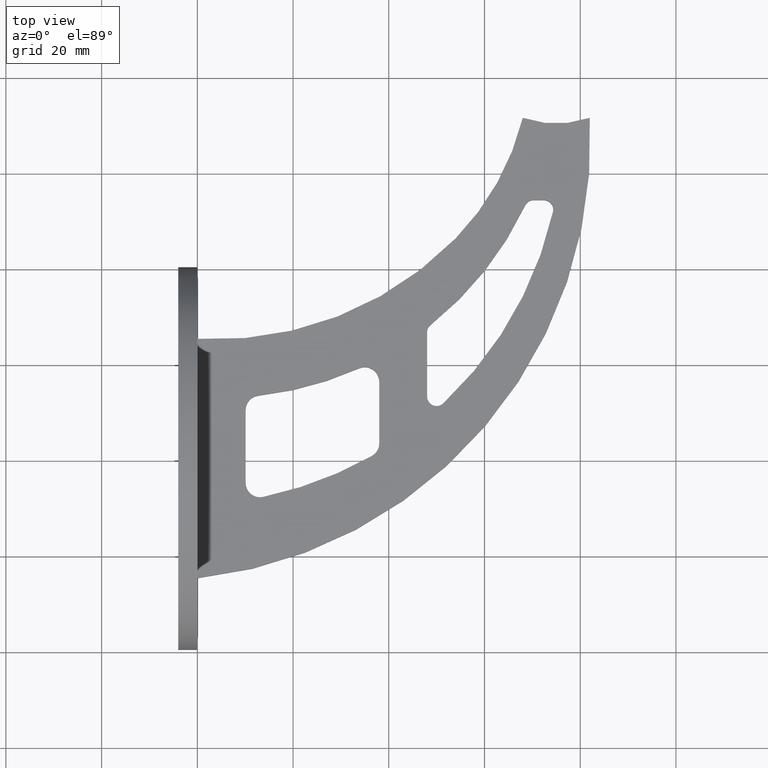
[diagram: clean part render]
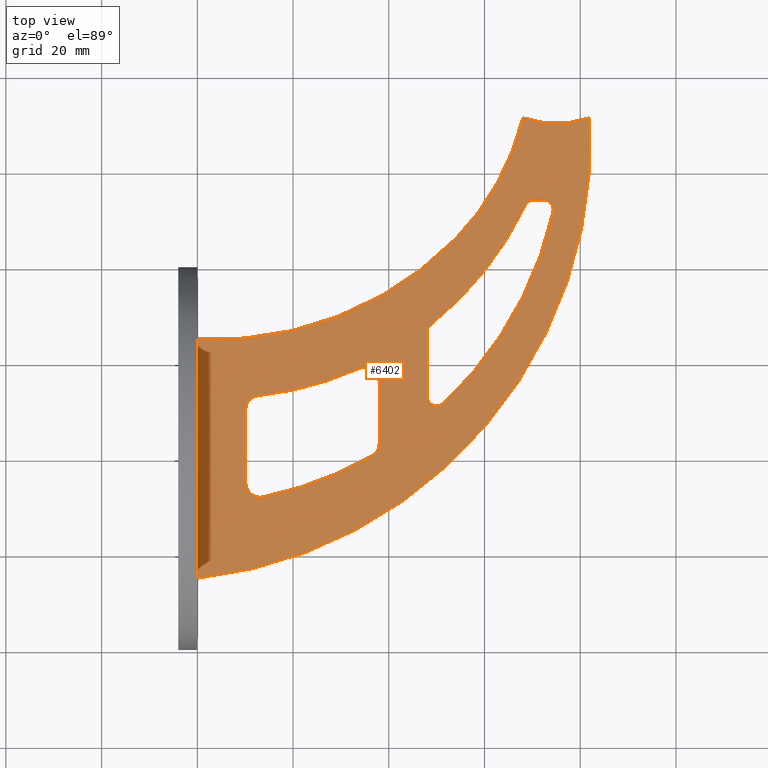
[diagram: same view with one face highlighted and labeled with its STEP entity id]
A machine part, top view. The second image highlights one B-rep face of the part: STEP entity #6402.
In plain terms, the highlighted planar face has unit normal (-0, 0, 1).
Its self-contained STEP definition (entity closure, byte-faithful):
#46 = CIRCLE ( 'NONE', #1055, 55.00000000000000711 ) ;
#64 = VERTEX_POINT ( 'NONE', #10560 ) ;
#187 = CIRCLE ( 'NONE', #260, 21.19999999999999574 ) ;
#226 = VERTEX_POINT ( 'NONE', #10006 ) ;
#260 = AXIS2_PLACEMENT_3D ( 'NONE', #10851, #5591, #3865 ) ;
#297 = VERTEX_POINT ( 'NONE', #5389 ) ;
#304 = ORIENTED_EDGE ( 'NONE', *, *, #4986, .T. ) ;
#333 = EDGE_CURVE ( 'NONE', #4907, #64, #11321, .T. ) ;
#575 = ORIENTED_EDGE ( 'NONE', *, *, #12045, .F. ) ;
#577 = AXIS2_PLACEMENT_3D ( 'NONE', #12306, #7294, #1469 ) ;
#614 = AXIS2_PLACEMENT_3D ( 'NONE', #7865, #8837, #3047 ) ;
#697 = ORIENTED_EDGE ( 'NONE', *, *, #1797, .T. ) ;
#766 = DIRECTION ( 'NONE',  ( 1.000000000000000000, 0.000000000000000000, 0.000000000000000000 ) ) ;
#813 = ORIENTED_EDGE ( 'NONE', *, *, #10724, .F. ) ;
#1036 = VERTEX_POINT ( 'NONE', #7690 ) ;
#1055 = AXIS2_PLACEMENT_3D ( 'NONE', #1887, #10678, #7758 ) ;
#1064 = CIRCLE ( 'NONE', #5026, 3.000000000000000888 ) ;
#1099 = DIRECTION ( 'NONE',  ( 0.000000000000000000, -0.000000000000000000, -1.000000000000000000 ) ) ;
#1165 = DIRECTION ( 'NONE',  ( 3.552713678800588651E-14, 1.000000000000000000, 0.000000000000000000 ) ) ;
#1204 = ORIENTED_EDGE ( 'NONE', *, *, #333, .F. ) ;
#1243 = DIRECTION ( 'NONE',  ( 0.000000000000000000, -0.000000000000000000, -1.000000000000000000 ) ) ;
#1244 = ORIENTED_EDGE ( 'NONE', *, *, #9173, .T. ) ;
#1318 = DIRECTION ( 'NONE',  ( 1.000000000000000000, 0.000000000000000000, 0.000000000000000000 ) ) ;
#1431 = CARTESIAN_POINT ( 'NONE',  ( -1.998139615876600116E-12, -24.99999999999961986, 2.000000000000000000 ) ) ;
#1458 = EDGE_CURVE ( 'NONE', #4428, #226, #7194, .T. ) ;
#1469 = DIRECTION ( 'NONE',  ( 1.000000000000000000, 0.000000000000000000, 0.000000000000000000 ) ) ;
#1481 = EDGE_CURVE ( 'NONE', #10685, #12131, #187, .T. ) ;
#1524 = DIRECTION ( 'NONE',  ( 1.000000000000000000, 0.000000000000000000, 0.000000000000000000 ) ) ;
#1578 = DIRECTION ( 'NONE',  ( 0.000000000000000000, -0.000000000000000000, -1.000000000000000000 ) ) ;
#1586 = EDGE_CURVE ( 'NONE', #4907, #7285, #7035, .T. ) ;
#1657 = DIRECTION ( 'NONE',  ( 1.000000000000000000, 0.000000000000000000, 0.000000000000000000 ) ) ;
#1712 = CIRCLE ( 'NONE', #7121, 69.99999999999998579 ) ;
#1715 = DIRECTION ( 'NONE',  ( 0.000000000000000000, 1.000000000000000000, -0.000000000000000000 ) ) ;
#1797 = EDGE_CURVE ( 'NONE', #7285, #4428, #1712, .T. ) ;
#1814 = EDGE_CURVE ( 'NONE', #6371, #64, #12047, .T. ) ;
#1877 = ORIENTED_EDGE ( 'NONE', *, *, #10908, .F. ) ;
#1887 = CARTESIAN_POINT ( 'NONE',  ( 14.61404249810564338, 84.41547426875771976, 2.000000000000000000 ) ) ;
#1903 = CIRCLE ( 'NONE', #577, 69.99999999999997158 ) ;
#2049 = VECTOR ( 'NONE', #6652, 1000.000000000000000 ) ;
#2293 = CARTESIAN_POINT ( 'NONE',  ( 5.180452133363093736, 82.72691493104838401, 2.000000000000000000 ) ) ;
#2468 = CARTESIAN_POINT ( 'NONE',  ( 33.77453912876527653, 18.83342395661993862, 2.000000000000000000 ) ) ;
#2518 = DIRECTION ( 'NONE',  ( -0.000000000000000000, 0.000000000000000000, 1.000000000000000000 ) ) ;
#2579 = DIRECTION ( 'NONE',  ( 1.000000000000000000, 0.000000000000000000, 0.000000000000000000 ) ) ;
#2593 = PLANE ( 'NONE',  #8277 ) ;
#2871 = EDGE_CURVE ( 'NONE', #297, #6507, #8697, .T. ) ;
#2996 = AXIS2_PLACEMENT_3D ( 'NONE', #10279, #3552, #1657 ) ;
#3014 = CARTESIAN_POINT ( 'NONE',  ( 49.99999999999681677, 26.37792976689011581, 2.000000000000000000 ) ) ;
#3047 = DIRECTION ( 'NONE',  ( 1.000000000000000000, 0.000000000000000000, 0.000000000000000000 ) ) ;
#3088 = EDGE_CURVE ( 'NONE', #6371, #9412, #7323, .T. ) ;
#3094 = DIRECTION ( 'NONE',  ( 1.000000000000000000, 3.469446951953611033E-15, 0.000000000000000000 ) ) ;
#3170 = ORIENTED_EDGE ( 'NONE', *, *, #1481, .F. ) ;
#3173 = CARTESIAN_POINT ( 'NONE',  ( 1.998587412948803633E-12, 24.99999999999992539, 2.000000000000000000 ) ) ;
#3262 = CARTESIAN_POINT ( 'NONE',  ( 5.180452133363093736, 82.72691493104838401, 2.000000000000000000 ) ) ;
#3330 = AXIS2_PLACEMENT_3D ( 'NONE', #5448, #2518, #1524 ) ;
#3499 = DIRECTION ( 'NONE',  ( 0.000000000000000000, -0.000000000000000000, -1.000000000000000000 ) ) ;
#3544 = ORIENTED_EDGE ( 'NONE', *, *, #1586, .T. ) ;
#3552 = DIRECTION ( 'NONE',  ( -0.000000000000000000, 0.000000000000000000, 1.000000000000000000 ) ) ;
#3643 = FACE_BOUND ( 'NONE', #5738, .T. ) ;
#3797 = FACE_BOUND ( 'NONE', #8676, .T. ) ;
#3798 = DIRECTION ( 'NONE',  ( 0.000000000000000000, -0.000000000000000000, -1.000000000000000000 ) ) ;
#3846 = AXIS2_PLACEMENT_3D ( 'NONE', #2293, #6066, #10937 ) ;
#3865 = DIRECTION ( 'NONE',  ( 1.000000000000000000, 0.000000000000000000, 0.000000000000000000 ) ) ;
#3887 = AXIS2_PLACEMENT_3D ( 'NONE', #3014, #1243, #3094 ) ;
#4009 = EDGE_CURVE ( 'NONE', #8315, #12131, #7476, .T. ) ;
#4219 = ORIENTED_EDGE ( 'NONE', *, *, #11733, .T. ) ;
#4428 = VERTEX_POINT ( 'NONE', #7551 ) ;
#4504 = ORIENTED_EDGE ( 'NONE', *, *, #1458, .T. ) ;
#4538 = CIRCLE ( 'NONE', #7066, 3.000000000000002665 ) ;
#4569 = CARTESIAN_POINT ( 'NONE',  ( 70.29463414327638304, 52.00000000000000711, 2.000000000000000000 ) ) ;
#4643 = ORIENTED_EDGE ( 'NONE', *, *, #4009, .T. ) ;
#4820 = DIRECTION ( 'NONE',  ( 1.000000000000000000, 0.000000000000000000, 0.000000000000000000 ) ) ;
#4907 = VERTEX_POINT ( 'NONE', #10160 ) ;
#4937 = AXIS2_PLACEMENT_3D ( 'NONE', #7457, #12158, #10194 ) ;
#4986 = EDGE_CURVE ( 'NONE', #297, #11035, #1064, .T. ) ;
#5026 = AXIS2_PLACEMENT_3D ( 'NONE', #6847, #12638, #4820 ) ;
#5048 = ORIENTED_EDGE ( 'NONE', *, *, #2871, .F. ) ;
#5103 = VECTOR ( 'NONE', #1715, 1000.000000000000000 ) ;
#5117 = LINE ( 'NONE', #10066, #7078 ) ;
#5292 = DIRECTION ( 'NONE',  ( -0.000000000000000000, 0.000000000000000000, 1.000000000000000000 ) ) ;
#5374 = ORIENTED_EDGE ( 'NONE', *, *, #10644, .T. ) ;
#5389 = CARTESIAN_POINT ( 'NONE',  ( 13.71090013864576207, -8.036652366193566266, 2.000000000000000000 ) ) ;
#5397 = VERTEX_POINT ( 'NONE', #8783 ) ;
#5448 = CARTESIAN_POINT ( 'NONE',  ( -9.878794471127335441, 66.46807869304582539, 2.000000000000000000 ) ) ;
#5571 = VERTEX_POINT ( 'NONE', #3173 ) ;
#5591 = DIRECTION ( 'NONE',  ( -0.000000000000000000, 0.000000000000000000, 1.000000000000000000 ) ) ;
#5610 = FACE_OUTER_BOUND ( 'NONE', #10733, .T. ) ;
#5639 = CARTESIAN_POINT ( 'NONE',  ( 37.99999999999681677, 16.09513148628725787, 2.000000000000001776 ) ) ;
#5738 = EDGE_LOOP ( 'NONE', ( #575, #1244, #5048, #304, #8937, #5374, #4219, #8889 ) ) ;
#5761 = ORIENTED_EDGE ( 'NONE', *, *, #12019, .F. ) ;
#5771 = DIRECTION ( 'NONE',  ( 3.565691630451076648E-16, 1.000000000000000000, 0.000000000000000000 ) ) ;
#5849 = CARTESIAN_POINT ( 'NONE',  ( 1.110223024625135740E-12, -3.944304526105082560E-26, 2.000000000000000000 ) ) ;
#6017 = LINE ( 'NONE', #8647, #5103 ) ;
#6066 = DIRECTION ( 'NONE',  ( -0.000000000000000000, 0.000000000000000000, 1.000000000000000000 ) ) ;
#6267 = DIRECTION ( 'NONE',  ( 1.000000000000000000, 0.000000000000000000, 0.000000000000000000 ) ) ;
#6366 = DIRECTION ( 'NONE',  ( 1.000000000000000000, 0.000000000000000000, 0.000000000000000000 ) ) ;
#6371 = VERTEX_POINT ( 'NONE', #9199 ) ;
#6402 = ADVANCED_FACE ( 'NONE', ( #3643, #3797, #5610 ), #2593, .T. ) ;
#6495 = DIRECTION ( 'NONE',  ( -0.000000000000000000, 0.000000000000000000, 1.000000000000000000 ) ) ;
#6507 = VERTEX_POINT ( 'NONE', #9368 ) ;
#6599 = VERTEX_POINT ( 'NONE', #5639 ) ;
#6652 = DIRECTION ( 'NONE',  ( 0.000000000000000000, -1.000000000000000000, 0.000000000000000000 ) ) ;
#6847 = CARTESIAN_POINT ( 'NONE',  ( 13.10000000000000142, -5.099510724971153763, 2.000000000000000000 ) ) ;
#7035 = CIRCLE ( 'NONE', #3887, 2.000000000000001776 ) ;
#7066 = AXIS2_PLACEMENT_3D ( 'NONE', #11688, #1099, #10783 ) ;
#7078 = VECTOR ( 'NONE', #1318, 1000.000000000000000 ) ;
#7082 = DIRECTION ( 'NONE',  ( 0.000000000000000000, -0.000000000000000000, -1.000000000000000000 ) ) ;
#7110 = CARTESIAN_POINT ( 'NONE',  ( 81.99999999999997158, 71.18900302333739205, 2.000000000000000000 ) ) ;
#7121 = AXIS2_PLACEMENT_3D ( 'NONE', #3262, #5292, #6267 ) ;
#7194 = CIRCLE ( 'NONE', #9559, 2.000000000000001776 ) ;
#7215 = EDGE_CURVE ( 'NONE', #8361, #6599, #4538, .T. ) ;
#7285 = VERTEX_POINT ( 'NONE', #11034 ) ;
#7294 = DIRECTION ( 'NONE',  ( -0.000000000000000000, 0.000000000000000000, 1.000000000000000000 ) ) ;
#7323 = CIRCLE ( 'NONE', #2996, 78.50000000000000000 ) ;
#7457 = CARTESIAN_POINT ( 'NONE',  ( 49.99999999999681677, 12.96476753913530722, 2.000000000000000000 ) ) ;
#7475 = ORIENTED_EDGE ( 'NONE', *, *, #9041, .T. ) ;
#7476 = CIRCLE ( 'NONE', #3330, 91.99999999999938893 ) ;
#7551 = CARTESIAN_POINT ( 'NONE',  ( 68.48590686522324233, 52.85352541475134558, 2.000000000000000000 ) ) ;
#7690 = CARTESIAN_POINT ( 'NONE',  ( 72.35400050248671278, 54.00000000000000711, 2.000000000000000000 ) ) ;
#7758 = DIRECTION ( 'NONE',  ( 1.000000000000000000, 0.000000000000000000, 0.000000000000000000 ) ) ;
#7865 = CARTESIAN_POINT ( 'NONE',  ( -2.274320155918185815, 68.81855391245915143, 2.000000000000000000 ) ) ;
#7978 = VECTOR ( 'NONE', #1165, 1000.000000000000000 ) ;
#8144 = EDGE_CURVE ( 'NONE', #1036, #9412, #12099, .T. ) ;
#8265 = CARTESIAN_POINT ( 'NONE',  ( 0.000000000000000000, 0.000000000000000000, 2.000000000000000000 ) ) ;
#8277 = AXIS2_PLACEMENT_3D ( 'NONE', #8265, #6495, #11242 ) ;
#8315 = VERTEX_POINT ( 'NONE', #1431 ) ;
#8361 = VERTEX_POINT ( 'NONE', #2468 ) ;
#8555 = CARTESIAN_POINT ( 'NONE',  ( 47.99999999999681677, 27.35105087009612745, 2.000000000000001776 ) ) ;
#8568 = CARTESIAN_POINT ( 'NONE',  ( 74.30506770924240811, 51.56029924411871690, 2.000000000000000000 ) ) ;
#8596 = CIRCLE ( 'NONE', #10655, 3.000000000000002665 ) ;
#8641 = ORIENTED_EDGE ( 'NONE', *, *, #3088, .F. ) ;
#8647 = CARTESIAN_POINT ( 'NONE',  ( 10.09999999999999964, 0.000000000000000000, 2.000000000000000000 ) ) ;
#8676 = EDGE_LOOP ( 'NONE', ( #8641, #10837, #1204, #3544, #697, #4504, #7475, #8890 ) ) ;
#8697 = CIRCLE ( 'NONE', #614, 78.50000000000000000 ) ;
#8783 = CARTESIAN_POINT ( 'NONE',  ( 37.99999999999680966, 3.161299500518132355, 2.000000000000001776 ) ) ;
#8810 = CARTESIAN_POINT ( 'NONE',  ( 37.99999999999680966, 1.437331483811726818, 2.000000000000001776 ) ) ;
#8837 = DIRECTION ( 'NONE',  ( -0.000000000000000000, 0.000000000000000000, 1.000000000000000000 ) ) ;
#8887 = CARTESIAN_POINT ( 'NONE',  ( 10.09999999999999964, -5.099510724971154652, 2.000000000000000000 ) ) ;
#8889 = ORIENTED_EDGE ( 'NONE', *, *, #7215, .T. ) ;
#8890 = ORIENTED_EDGE ( 'NONE', *, *, #8144, .T. ) ;
#8907 = CARTESIAN_POINT ( 'NONE',  ( 72.35400050248671278, 52.00000000000000711, 2.000000000000000000 ) ) ;
#8937 = ORIENTED_EDGE ( 'NONE', *, *, #9539, .T. ) ;
#9041 = EDGE_CURVE ( 'NONE', #226, #1036, #5117, .T. ) ;
#9173 = EDGE_CURVE ( 'NONE', #5397, #6507, #8596, .T. ) ;
#9181 = VERTEX_POINT ( 'NONE', #12537 ) ;
#9199 = CARTESIAN_POINT ( 'NONE',  ( 51.36664889296192626, 11.50453783002879149, 2.000000000000000000 ) ) ;
#9368 = CARTESIAN_POINT ( 'NONE',  ( 36.48109881413913058, 0.5524019742158270407, 2.000000000000000000 ) ) ;
#9412 = VERTEX_POINT ( 'NONE', #8568 ) ;
#9510 = CARTESIAN_POINT ( 'NONE',  ( 34.99999999999680256, 3.161299500518133243, 2.000000000000000000 ) ) ;
#9539 = EDGE_CURVE ( 'NONE', #11035, #9181, #6017, .T. ) ;
#9559 = AXIS2_PLACEMENT_3D ( 'NONE', #4569, #1578, #2579 ) ;
#9909 = AXIS2_PLACEMENT_3D ( 'NONE', #8907, #7082, #9927 ) ;
#9927 = DIRECTION ( 'NONE',  ( 1.000000000000000000, -3.469446951953611033E-15, 0.000000000000000000 ) ) ;
#10006 = CARTESIAN_POINT ( 'NONE',  ( 70.29463414327638304, 54.00000000000000711, 2.000000000000000000 ) ) ;
#10066 = CARTESIAN_POINT ( 'NONE',  ( 0.000000000000000000, 54.00000000000000711, 2.000000000000000000 ) ) ;
#10094 = LINE ( 'NONE', #8810, #11153 ) ;
#10160 = CARTESIAN_POINT ( 'NONE',  ( 47.99999999999681677, 26.37792976689011581, 2.000000000000001776 ) ) ;
#10194 = DIRECTION ( 'NONE',  ( 1.000000000000000000, 2.602085213965208275E-15, 0.000000000000000000 ) ) ;
#10253 = CARTESIAN_POINT ( 'NONE',  ( 68.00000000000000000, 71.18900302333739205, 2.000000000000000000 ) ) ;
#10279 = CARTESIAN_POINT ( 'NONE',  ( -2.274320155918185815, 68.81855391245915143, 2.000000000000000000 ) ) ;
#10390 = CIRCLE ( 'NONE', #3846, 69.99999999999998579 ) ;
#10560 = CARTESIAN_POINT ( 'NONE',  ( 47.99999999999681677, 12.96476753913530722, 2.000000000000001776 ) ) ;
#10583 = AXIS2_PLACEMENT_3D ( 'NONE', #12168, #3499, #6366 ) ;
#10644 = EDGE_CURVE ( 'NONE', #9181, #10682, #12236, .T. ) ;
#10655 = AXIS2_PLACEMENT_3D ( 'NONE', #9510, #3798, #766 ) ;
#10678 = DIRECTION ( 'NONE',  ( -0.000000000000000000, 0.000000000000000000, 1.000000000000000000 ) ) ;
#10682 = VERTEX_POINT ( 'NONE', #11280 ) ;
#10685 = VERTEX_POINT ( 'NONE', #10253 ) ;
#10724 = EDGE_CURVE ( 'NONE', #5571, #11236, #1903, .T. ) ;
#10733 = EDGE_LOOP ( 'NONE', ( #813, #1877, #4643, #3170, #5761 ) ) ;
#10783 = DIRECTION ( 'NONE',  ( 1.000000000000000000, 2.312964634635740689E-15, 0.000000000000000000 ) ) ;
#10837 = ORIENTED_EDGE ( 'NONE', *, *, #1814, .T. ) ;
#10851 = CARTESIAN_POINT ( 'NONE',  ( 74.99999999999998579, 91.20000000000000284, 2.000000000000000000 ) ) ;
#10908 = EDGE_CURVE ( 'NONE', #8315, #5571, #11636, .T. ) ;
#10937 = DIRECTION ( 'NONE',  ( 1.000000000000000000, 0.000000000000000000, 0.000000000000000000 ) ) ;
#11034 = CARTESIAN_POINT ( 'NONE',  ( 48.75501255925698274, 27.94317935478341042, 2.000000000000000000 ) ) ;
#11035 = VERTEX_POINT ( 'NONE', #8887 ) ;
#11153 = VECTOR ( 'NONE', #5771, 1000.000000000000000 ) ;
#11236 = VERTEX_POINT ( 'NONE', #12546 ) ;
#11242 = DIRECTION ( 'NONE',  ( 1.000000000000000000, 0.000000000000000000, 0.000000000000000000 ) ) ;
#11280 = CARTESIAN_POINT ( 'NONE',  ( 12.77453912876834252, 13.14006385481261674, 2.000000000000000000 ) ) ;
#11321 = LINE ( 'NONE', #8555, #2049 ) ;
#11636 = LINE ( 'NONE', #5849, #7978 ) ;
#11688 = CARTESIAN_POINT ( 'NONE',  ( 34.99999999999680966, 16.09513148628725787, 2.000000000000000000 ) ) ;
#11733 = EDGE_CURVE ( 'NONE', #10682, #8361, #10390, .T. ) ;
#12019 = EDGE_CURVE ( 'NONE', #11236, #10685, #46, .T. ) ;
#12045 = EDGE_CURVE ( 'NONE', #5397, #6599, #10094, .T. ) ;
#12047 = CIRCLE ( 'NONE', #4937, 2.000000000000001776 ) ;
#12099 = CIRCLE ( 'NONE', #9909, 2.000000000000001776 ) ;
#12131 = VERTEX_POINT ( 'NONE', #7110 ) ;
#12158 = DIRECTION ( 'NONE',  ( 0.000000000000000000, -0.000000000000000000, -1.000000000000000000 ) ) ;
#12168 = CARTESIAN_POINT ( 'NONE',  ( 13.09999999999999964, 10.15777023725963879, 2.000000000000000000 ) ) ;
#12236 = CIRCLE ( 'NONE', #10583, 3.000000000000000888 ) ;
#12306 = CARTESIAN_POINT ( 'NONE',  ( 3.879352446742994065, 94.89242179660072907, 2.000000000000000000 ) ) ;
#12537 = CARTESIAN_POINT ( 'NONE',  ( 10.09999999999999964, 10.15777023725963879, 2.000000000000000000 ) ) ;
#12546 = CARTESIAN_POINT ( 'NONE',  ( 53.97457268643530881, 45.99999999999996447, 2.000000000000000000 ) ) ;
#12638 = DIRECTION ( 'NONE',  ( 0.000000000000000000, -0.000000000000000000, -1.000000000000000000 ) ) ;